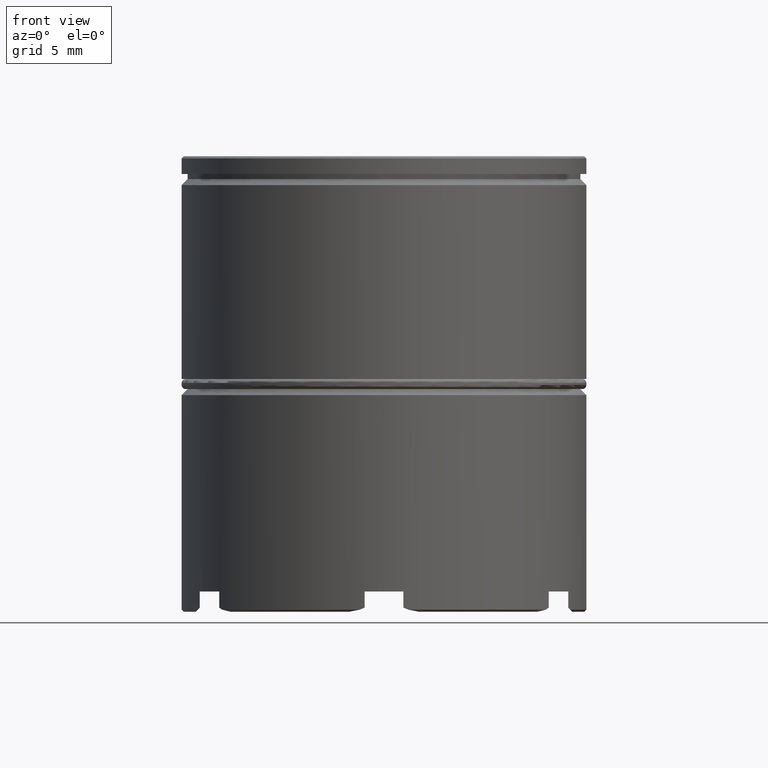
[diagram: clean part render]
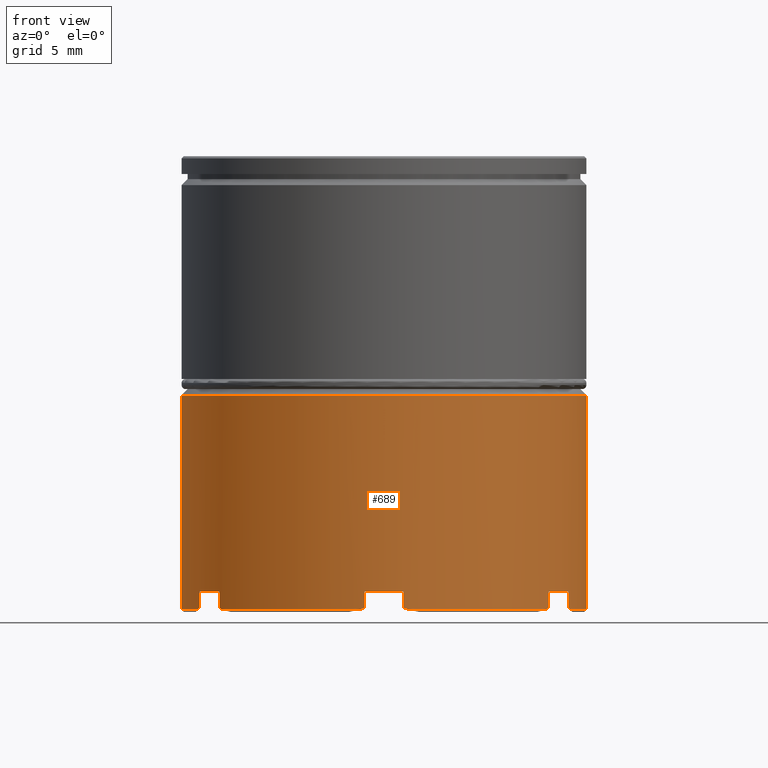
[diagram: same view with one face highlighted and labeled with its STEP entity id]
A machine part, front view. The second image highlights one B-rep face of the part: STEP entity #689.
In plain terms, the highlighted cylindrical surface (partial cylindrical patch) has radius 10 mm, axis along (-0, -0, 1).
Its self-contained STEP definition (entity closure, byte-faithful):
#34 = EDGE_CURVE ( 'NONE', #687, #1627, #835, .T. ) ;
#36 = DIRECTION ( 'NONE',  ( -0.000000000000000000, -0.000000000000000000, 1.000000000000000000 ) ) ;
#39 = CARTESIAN_POINT ( 'NONE',  ( 1.123833772376130691, -9.936992996320922700, -22.36760525823003221 ) ) ;
#47 = DIRECTION ( 'NONE',  ( 0.000000000000000000, 0.000000000000000000, -1.000000000000000000 ) ) ;
#56 = CARTESIAN_POINT ( 'NONE',  ( 1.041662824983015545, -9.945942424723392961, -22.33427021687936076 ) ) ;
#57 =( BOUNDED_CURVE ( )  B_SPLINE_CURVE ( 3, ( #327, #970, #1346, #223 ),
 .UNSPECIFIED., .F., .T. ) 
 B_SPLINE_CURVE_WITH_KNOTS ( ( 4, 4 ),
 ( 3.544308495170453099, 3.569104918534661497 ),
 .UNSPECIFIED. ) 
 CURVE ( )  GEOMETRIC_REPRESENTATION_ITEM ( )  RATIONAL_B_SPLINE_CURVE ( ( 1.000000000000000000, 0.9999487621053724240, 0.9999487621053724240, 1.000000000000000000 ) ) 
 REPRESENTATION_ITEM ( '' )  );
#74 = ORIENTED_EDGE ( 'NONE', *, *, #555, .T. ) ;
#75 = CARTESIAN_POINT ( 'NONE',  ( -0.9593872389242613652, -9.953872418601180883, -22.30000000000000071 ) ) ;
#89 = CARTESIAN_POINT ( 'NONE',  ( 9.100000000000001421, -4.146082488325571802, -21.50000000000000000 ) ) ;
#93 = CARTESIAN_POINT ( 'NONE',  ( -9.134270216879361470, -4.070864743748538572, -22.33427021687936431 ) ) ;
#112 = CARTESIAN_POINT ( 'NONE',  ( 9.100000000000001421, -4.146082488325571802, 0.000000000000000000 ) ) ;
#119 = VERTEX_POINT ( 'NONE', #1256 ) ;
#125 = ORIENTED_EDGE ( 'NONE', *, *, #958, .T. ) ;
#133 = EDGE_CURVE ( 'NONE', #773, #1183, #599, .T. ) ;
#138 = CARTESIAN_POINT ( 'NONE',  ( -8.092607391896340374, -5.875077680974857053, -22.33427021687935721 ) ) ;
#166 =( BOUNDED_CURVE ( )  B_SPLINE_CURVE ( 3, ( #796, #56, #39, #1379 ),
 .UNSPECIFIED., .F., .T. ) 
 B_SPLINE_CURVE_WITH_KNOTS ( ( 4, 4 ),
 ( 2.714080388644924735, 2.738876812009132244 ),
 .UNSPECIFIED. ) 
 CURVE ( )  GEOMETRIC_REPRESENTATION_ITEM ( )  RATIONAL_B_SPLINE_CURVE ( ( 1.000000000000000000, 0.9999487621053724240, 0.9999487621053724240, 1.000000000000000000 ) ) 
 REPRESENTATION_ITEM ( '' )  );
#167 = CARTESIAN_POINT ( 'NONE',  ( -8.140612761075741943, -5.807789930275611745, -21.50000000000000000 ) ) ;
#168 = ORIENTED_EDGE ( 'NONE', *, *, #701, .T. ) ;
#169 = DIRECTION ( 'NONE',  ( -0.000000000000000000, -0.000000000000000000, 1.000000000000000000 ) ) ;
#175 = LINE ( 'NONE', #683, #179 ) ;
#179 = VECTOR ( 'NONE', #1070, 1000.000000000000000 ) ;
#194 = ORIENTED_EDGE ( 'NONE', *, *, #769, .T. ) ;
#200 = DIRECTION ( 'NONE',  ( 0.000000000000000000, 0.000000000000000000, -1.000000000000000000 ) ) ;
#204 = VERTEX_POINT ( 'NONE', #1561 ) ;
#205 = CIRCLE ( 'NONE', #1132, 10.00000000000000000 ) ;
#206 = CARTESIAN_POINT ( 'NONE',  ( -9.100000000000003197, -4.146082488325570026, -22.30000000000000426 ) ) ;
#214 = CYLINDRICAL_SURFACE ( 'NONE', #648, 10.00000000000000000 ) ;
#220 = CARTESIAN_POINT ( 'NONE',  ( 9.100000000000001421, -4.146082488325571802, -22.30000000000000426 ) ) ;
#222 = ORIENTED_EDGE ( 'NONE', *, *, #1359, .T. ) ;
#223 = CARTESIAN_POINT ( 'NONE',  ( -0.9593872389242613652, -9.953872418601180883, -22.30000000000000071 ) ) ;
#230 = VERTEX_POINT ( 'NONE', #281 ) ;
#233 = LINE ( 'NONE', #112, #1136 ) ;
#276 = CARTESIAN_POINT ( 'NONE',  ( -8.043771485853893566, -5.941765094669095859, -22.36760525823002865 ) ) ;
#281 = CARTESIAN_POINT ( 'NONE',  ( -10.00000000000000000, 1.224646799147353256E-15, -22.39999999999999858 ) ) ;
#287 = AXIS2_PLACEMENT_3D ( 'NONE', #1413, #880, #890 ) ;
#308 = CARTESIAN_POINT ( 'NONE',  ( -1.205887450304584885, -9.927025509043376772, -22.39999999999999858 ) ) ;
#322 = VERTEX_POINT ( 'NONE', #1049 ) ;
#327 = CARTESIAN_POINT ( 'NONE',  ( -1.205887450304584885, -9.927025509043376772, -22.39999999999999858 ) ) ;
#330 = ORIENTED_EDGE ( 'NONE', *, *, #1147, .F. ) ;
#345 = DIRECTION ( 'NONE',  ( -1.000000000000000000, 0.000000000000000000, 0.000000000000000000 ) ) ;
#351 =( BOUNDED_CURVE ( )  B_SPLINE_CURVE ( 3, ( #539, #410, #1595, #1084 ),
 .UNSPECIFIED., .F., .T. ) 
 B_SPLINE_CURVE_WITH_KNOTS ( ( 4, 4 ),
 ( 2.714080388644924291, 2.738876812009131356 ),
 .UNSPECIFIED. ) 
 CURVE ( )  GEOMETRIC_REPRESENTATION_ITEM ( )  RATIONAL_B_SPLINE_CURVE ( ( 1.000000000000000000, 0.9999487621053724240, 0.9999487621053724240, 1.000000000000000000 ) ) 
 REPRESENTATION_ITEM ( '' )  );
#371 = EDGE_CURVE ( 'NONE', #844, #450, #57, .T. ) ;
#379 = DIRECTION ( 'NONE',  ( -0.000000000000000000, -0.000000000000000000, 1.000000000000000000 ) ) ;
#383 = CARTESIAN_POINT ( 'NONE',  ( 0.000000000000000000, 0.000000000000000000, -22.39999999999999858 ) ) ;
#397 = EDGE_CURVE ( 'NONE', #204, #322, #1602, .T. ) ;
#410 = CARTESIAN_POINT ( 'NONE',  ( 9.134270216879359694, -4.070864743748543901, -22.33427021687936431 ) ) ;
#411 = CIRCLE ( 'NONE', #867, 10.00000000000000000 ) ;
#423 = CARTESIAN_POINT ( 'NONE',  ( -7.994112549695421954, -6.007841920590299978, -22.39999999999999858 ) ) ;
#430 = LINE ( 'NONE', #1437, #775 ) ;
#439 = DIRECTION ( 'NONE',  ( -0.000000000000000000, -0.000000000000000000, 1.000000000000000000 ) ) ;
#441 = AXIS2_PLACEMENT_3D ( 'NONE', #899, #1411, #647 ) ;
#448 = ORIENTED_EDGE ( 'NONE', *, *, #1192, .F. ) ;
#450 = VERTEX_POINT ( 'NONE', #75 ) ;
#452 = CARTESIAN_POINT ( 'NONE',  ( 7.994112549695425507, -6.007841920590296425, -22.39999999999999858 ) ) ;
#465 = ORIENTED_EDGE ( 'NONE', *, *, #133, .T. ) ;
#466 = CARTESIAN_POINT ( 'NONE',  ( 0.000000000000000000, 0.000000000000000000, -22.39999999999999858 ) ) ;
#467 = CARTESIAN_POINT ( 'NONE',  ( -8.140612761075741943, -5.807789930275611745, -22.30000000000000071 ) ) ;
#473 = VERTEX_POINT ( 'NONE', #423 ) ;
#481 = CARTESIAN_POINT ( 'NONE',  ( -9.100000000000003197, -4.146082488325570026, -21.50000000000000000 ) ) ;
#490 = CARTESIAN_POINT ( 'NONE',  ( 0.000000000000000000, 0.000000000000000000, -21.50000000000000000 ) ) ;
#508 =( BOUNDED_CURVE ( )  B_SPLINE_CURVE ( 3, ( #749, #138, #276, #772 ),
 .UNSPECIFIED., .F., .T. ) 
 B_SPLINE_CURVE_WITH_KNOTS ( ( 4, 4 ),
 ( 2.714080388644925179, 2.738876812009133133 ),
 .UNSPECIFIED. ) 
 CURVE ( )  GEOMETRIC_REPRESENTATION_ITEM ( )  RATIONAL_B_SPLINE_CURVE ( ( 1.000000000000000000, 0.9999487621053724240, 0.9999487621053724240, 1.000000000000000000 ) ) 
 REPRESENTATION_ITEM ( '' )  );
#535 = EDGE_CURVE ( 'NONE', #1239, #322, #1134, .T. ) ;
#539 = CARTESIAN_POINT ( 'NONE',  ( 9.100000000000001421, -4.146082488325571802, -22.30000000000000426 ) ) ;
#545 = CARTESIAN_POINT ( 'NONE',  ( 10.00000000000000000, 0.000000000000000000, -22.39999999999999858 ) ) ;
#555 = EDGE_CURVE ( 'NONE', #1459, #1627, #1313, .T. ) ;
#562 = DIRECTION ( 'NONE',  ( -0.000000000000000000, -0.000000000000000000, 1.000000000000000000 ) ) ;
#564 = CARTESIAN_POINT ( 'NONE',  ( -9.199999999999999289, -3.919183588453087008, -22.39999999999999858 ) ) ;
#598 = CIRCLE ( 'NONE', #1557, 10.00000000000000000 ) ;
#599 = CIRCLE ( 'NONE', #287, 10.00000000000000000 ) ;
#601 = VERTEX_POINT ( 'NONE', #615 ) ;
#615 = CARTESIAN_POINT ( 'NONE',  ( -0.9593872389242613652, -9.953872418601180883, -21.50000000000000000 ) ) ;
#620 = ORIENTED_EDGE ( 'NONE', *, *, #932, .T. ) ;
#621 = EDGE_CURVE ( 'NONE', #230, #1183, #430, .T. ) ;
#622 = DIRECTION ( 'NONE',  ( -1.000000000000000000, 0.000000000000000000, 0.000000000000000000 ) ) ;
#631 = CARTESIAN_POINT ( 'NONE',  ( 0.000000000000000000, 0.000000000000000000, -21.50000000000000000 ) ) ;
#647 = DIRECTION ( 'NONE',  ( -1.000000000000000000, 0.000000000000000000, 0.000000000000000000 ) ) ;
#648 = AXIS2_PLACEMENT_3D ( 'NONE', #699, #821, #1332 ) ;
#668 = VERTEX_POINT ( 'NONE', #1243 ) ;
#683 = CARTESIAN_POINT ( 'NONE',  ( 0.9593872389242583676, -9.953872418601179106, 0.000000000000000000 ) ) ;
#684 = LINE ( 'NONE', #1173, #1010 ) ;
#687 = VERTEX_POINT ( 'NONE', #481 ) ;
#689 = ADVANCED_FACE ( 'NONE', ( #999 ), #214, .T. ) ;
#699 = CARTESIAN_POINT ( 'NONE',  ( 0.000000000000000000, 0.000000000000000000, 0.000000000000000000 ) ) ;
#701 = EDGE_CURVE ( 'NONE', #230, #1459, #1579, .T. ) ;
#717 = ORIENTED_EDGE ( 'NONE', *, *, #621, .F. ) ;
#721 = VERTEX_POINT ( 'NONE', #1338 ) ;
#722 = CARTESIAN_POINT ( 'NONE',  ( -10.00000000000000000, 1.224646799147353256E-15, -11.80000000000000071 ) ) ;
#723 = CARTESIAN_POINT ( 'NONE',  ( 8.140612761075740167, -5.807789930275612633, -22.30000000000000071 ) ) ;
#749 = CARTESIAN_POINT ( 'NONE',  ( -8.140612761075741943, -5.807789930275611745, -22.30000000000000071 ) ) ;
#751 = CIRCLE ( 'NONE', #1057, 10.00000000000000000 ) ;
#769 = EDGE_CURVE ( 'NONE', #473, #844, #205, .T. ) ;
#772 = CARTESIAN_POINT ( 'NONE',  ( -7.994112549695421954, -6.007841920590299978, -22.39999999999999858 ) ) ;
#773 = VERTEX_POINT ( 'NONE', #1396 ) ;
#775 = VECTOR ( 'NONE', #169, 1000.000000000000000 ) ;
#787 = CARTESIAN_POINT ( 'NONE',  ( 0.9593872389242583676, -9.953872418601179106, -22.30000000000000071 ) ) ;
#796 = CARTESIAN_POINT ( 'NONE',  ( 0.9593872389242583676, -9.953872418601179106, -22.30000000000000071 ) ) ;
#814 = EDGE_LOOP ( 'NONE', ( #717, #168, #74, #1340, #1119, #330, #620, #194, #1488, #856, #830, #1120, #1412, #222, #1367, #1133, #1601, #448, #125, #1463, #1472, #465 ) ) ;
#820 = DIRECTION ( 'NONE',  ( -0.000000000000000000, -0.000000000000000000, 1.000000000000000000 ) ) ;
#821 = DIRECTION ( 'NONE',  ( -0.000000000000000000, -0.000000000000000000, 1.000000000000000000 ) ) ;
#822 = DIRECTION ( 'NONE',  ( -1.000000000000000000, 3.552713678800500929E-15, 0.000000000000000000 ) ) ;
#830 = ORIENTED_EDGE ( 'NONE', *, *, #892, .T. ) ;
#835 = LINE ( 'NONE', #1251, #1322 ) ;
#844 = VERTEX_POINT ( 'NONE', #308 ) ;
#854 = DIRECTION ( 'NONE',  ( -0.000000000000000000, -0.000000000000000000, 1.000000000000000000 ) ) ;
#856 = ORIENTED_EDGE ( 'NONE', *, *, #994, .F. ) ;
#866 = AXIS2_PLACEMENT_3D ( 'NONE', #466, #1223, #345 ) ;
#867 = AXIS2_PLACEMENT_3D ( 'NONE', #1077, #439, #822 ) ;
#876 = DIRECTION ( 'NONE',  ( -1.000000000000000000, 0.000000000000000000, 0.000000000000000000 ) ) ;
#880 = DIRECTION ( 'NONE',  ( 0.000000000000000000, 0.000000000000000000, -1.000000000000000000 ) ) ;
#890 = DIRECTION ( 'NONE',  ( 1.000000000000000000, 0.000000000000000000, 0.000000000000000000 ) ) ;
#891 = DIRECTION ( 'NONE',  ( -1.000000000000000000, 0.000000000000000000, 0.000000000000000000 ) ) ;
#892 = EDGE_CURVE ( 'NONE', #601, #668, #751, .T. ) ;
#899 = CARTESIAN_POINT ( 'NONE',  ( 0.000000000000000000, 0.000000000000000000, -21.50000000000000000 ) ) ;
#917 = DIRECTION ( 'NONE',  ( -0.000000000000000000, -0.000000000000000000, 1.000000000000000000 ) ) ;
#925 = VERTEX_POINT ( 'NONE', #467 ) ;
#932 = EDGE_CURVE ( 'NONE', #925, #473, #508, .T. ) ;
#958 = EDGE_CURVE ( 'NONE', #1483, #721, #351, .T. ) ;
#969 = VERTEX_POINT ( 'NONE', #167 ) ;
#970 = CARTESIAN_POINT ( 'NONE',  ( -1.123833772376140905, -9.936992996320919147, -22.36760525823002865 ) ) ;
#979 = CARTESIAN_POINT ( 'NONE',  ( 8.140612761075740167, -5.807789930275612633, 0.000000000000000000 ) ) ;
#983 = DIRECTION ( 'NONE',  ( -1.000000000000000000, 0.000000000000000000, 0.000000000000000000 ) ) ;
#989 = LINE ( 'NONE', #1487, #1536 ) ;
#994 = EDGE_CURVE ( 'NONE', #601, #450, #1179, .T. ) ;
#995 = VERTEX_POINT ( 'NONE', #545 ) ;
#999 = FACE_OUTER_BOUND ( 'NONE', #814, .T. ) ;
#1001 = EDGE_CURVE ( 'NONE', #1196, #668, #175, .T. ) ;
#1007 = VECTOR ( 'NONE', #1476, 1000.000000000000000 ) ;
#1010 = VECTOR ( 'NONE', #562, 1000.000000000000000 ) ;
#1049 = CARTESIAN_POINT ( 'NONE',  ( 8.140612761075740167, -5.807789930275612633, -22.30000000000000071 ) ) ;
#1057 = AXIS2_PLACEMENT_3D ( 'NONE', #490, #1615, #876 ) ;
#1058 = AXIS2_PLACEMENT_3D ( 'NONE', #631, #36, #622 ) ;
#1070 = DIRECTION ( 'NONE',  ( -0.000000000000000000, -0.000000000000000000, 1.000000000000000000 ) ) ;
#1076 = EDGE_CURVE ( 'NONE', #721, #995, #411, .T. ) ;
#1077 = CARTESIAN_POINT ( 'NONE',  ( 0.000000000000000000, 0.000000000000000000, -22.39999999999999858 ) ) ;
#1084 = CARTESIAN_POINT ( 'NONE',  ( 9.199999999999997513, -3.919183588453090561, -22.39999999999999858 ) ) ;
#1119 = ORIENTED_EDGE ( 'NONE', *, *, #1543, .T. ) ;
#1120 = ORIENTED_EDGE ( 'NONE', *, *, #1001, .F. ) ;
#1132 = AXIS2_PLACEMENT_3D ( 'NONE', #1524, #379, #891 ) ;
#1133 = ORIENTED_EDGE ( 'NONE', *, *, #397, .F. ) ;
#1134 =( BOUNDED_CURVE ( )  B_SPLINE_CURVE ( 3, ( #452, #1225, #1486, #723 ),
 .UNSPECIFIED., .F., .T. ) 
 B_SPLINE_CURVE_WITH_KNOTS ( ( 4, 4 ),
 ( 3.544308495170454432, 3.569104918534661941 ),
 .UNSPECIFIED. ) 
 CURVE ( )  GEOMETRIC_REPRESENTATION_ITEM ( )  RATIONAL_B_SPLINE_CURVE ( ( 1.000000000000000000, 0.9999487621053724240, 0.9999487621053724240, 1.000000000000000000 ) ) 
 REPRESENTATION_ITEM ( '' )  );
#1136 = VECTOR ( 'NONE', #917, 1000.000000000000000 ) ;
#1147 = EDGE_CURVE ( 'NONE', #925, #969, #989, .T. ) ;
#1161 = CARTESIAN_POINT ( 'NONE',  ( 7.994112549695425507, -6.007841920590296425, -22.39999999999999858 ) ) ;
#1173 = CARTESIAN_POINT ( 'NONE',  ( 10.00000000000000000, 0.000000000000000000, 0.000000000000000000 ) ) ;
#1179 = LINE ( 'NONE', #1574, #1607 ) ;
#1183 = VERTEX_POINT ( 'NONE', #722 ) ;
#1192 = EDGE_CURVE ( 'NONE', #1483, #1392, #233, .T. ) ;
#1196 = VERTEX_POINT ( 'NONE', #787 ) ;
#1223 = DIRECTION ( 'NONE',  ( -0.000000000000000000, -0.000000000000000000, 1.000000000000000000 ) ) ;
#1225 = CARTESIAN_POINT ( 'NONE',  ( 8.043771485853898895, -5.941765094669091418, -22.36760525823003221 ) ) ;
#1239 = VERTEX_POINT ( 'NONE', #1161 ) ;
#1243 = CARTESIAN_POINT ( 'NONE',  ( 0.9593872389242552590, -9.953872418601180883, -21.50000000000000000 ) ) ;
#1248 = CARTESIAN_POINT ( 'NONE',  ( -9.167605258230031140, -3.995227901651832614, -22.36760525823003221 ) ) ;
#1251 = CARTESIAN_POINT ( 'NONE',  ( -9.100000000000003197, -4.146082488325570026, 0.000000000000000000 ) ) ;
#1256 = CARTESIAN_POINT ( 'NONE',  ( 1.205887450304572450, -9.927025509043378548, -22.39999999999999858 ) ) ;
#1279 = CARTESIAN_POINT ( 'NONE',  ( -9.100000000000003197, -4.146082488325570026, -22.30000000000000426 ) ) ;
#1313 =( BOUNDED_CURVE ( )  B_SPLINE_CURVE ( 3, ( #1496, #1248, #93, #206 ),
 .UNSPECIFIED., .F., .T. ) 
 B_SPLINE_CURVE_WITH_KNOTS ( ( 4, 4 ),
 ( 3.544308495170454432, 3.569104918534661497 ),
 .UNSPECIFIED. ) 
 CURVE ( )  GEOMETRIC_REPRESENTATION_ITEM ( )  RATIONAL_B_SPLINE_CURVE ( ( 1.000000000000000000, 0.9999487621053724240, 0.9999487621053724240, 1.000000000000000000 ) ) 
 REPRESENTATION_ITEM ( '' )  );
#1322 = VECTOR ( 'NONE', #200, 1000.000000000000000 ) ;
#1329 = EDGE_CURVE ( 'NONE', #995, #773, #684, .T. ) ;
#1332 = DIRECTION ( 'NONE',  ( 1.000000000000000000, 0.000000000000000000, 0.000000000000000000 ) ) ;
#1338 = CARTESIAN_POINT ( 'NONE',  ( 9.199999999999997513, -3.919183588453090561, -22.39999999999999858 ) ) ;
#1340 = ORIENTED_EDGE ( 'NONE', *, *, #34, .F. ) ;
#1346 = CARTESIAN_POINT ( 'NONE',  ( -1.041662824983022650, -9.945942424723391184, -22.33427021687935721 ) ) ;
#1359 = EDGE_CURVE ( 'NONE', #119, #1239, #598, .T. ) ;
#1367 = ORIENTED_EDGE ( 'NONE', *, *, #535, .T. ) ;
#1372 = CIRCLE ( 'NONE', #1058, 10.00000000000000000 ) ;
#1379 = CARTESIAN_POINT ( 'NONE',  ( 1.205887450304572450, -9.927025509043378548, -22.39999999999999858 ) ) ;
#1392 = VERTEX_POINT ( 'NONE', #89 ) ;
#1396 = CARTESIAN_POINT ( 'NONE',  ( 10.00000000000000000, 0.000000000000000000, -11.80000000000000071 ) ) ;
#1411 = DIRECTION ( 'NONE',  ( -0.000000000000000000, -0.000000000000000000, 1.000000000000000000 ) ) ;
#1412 = ORIENTED_EDGE ( 'NONE', *, *, #1480, .T. ) ;
#1413 = CARTESIAN_POINT ( 'NONE',  ( 0.000000000000000000, 0.000000000000000000, -11.80000000000000071 ) ) ;
#1435 = EDGE_CURVE ( 'NONE', #204, #1392, #1372, .T. ) ;
#1437 = CARTESIAN_POINT ( 'NONE',  ( -10.00000000000000000, 1.224646799147353256E-15, 0.000000000000000000 ) ) ;
#1459 = VERTEX_POINT ( 'NONE', #564 ) ;
#1463 = ORIENTED_EDGE ( 'NONE', *, *, #1076, .T. ) ;
#1472 = ORIENTED_EDGE ( 'NONE', *, *, #1329, .T. ) ;
#1476 = DIRECTION ( 'NONE',  ( 0.000000000000000000, 0.000000000000000000, -1.000000000000000000 ) ) ;
#1480 = EDGE_CURVE ( 'NONE', #1196, #119, #166, .T. ) ;
#1483 = VERTEX_POINT ( 'NONE', #220 ) ;
#1486 = CARTESIAN_POINT ( 'NONE',  ( 8.092607391896345703, -5.875077680974853500, -22.33427021687936076 ) ) ;
#1487 = CARTESIAN_POINT ( 'NONE',  ( -8.140612761075741943, -5.807789930275611745, 0.000000000000000000 ) ) ;
#1488 = ORIENTED_EDGE ( 'NONE', *, *, #371, .T. ) ;
#1496 = CARTESIAN_POINT ( 'NONE',  ( -9.199999999999999289, -3.919183588453087008, -22.39999999999999858 ) ) ;
#1524 = CARTESIAN_POINT ( 'NONE',  ( 0.000000000000000000, 0.000000000000000000, -22.39999999999999858 ) ) ;
#1536 = VECTOR ( 'NONE', #854, 1000.000000000000000 ) ;
#1543 = EDGE_CURVE ( 'NONE', #687, #969, #1610, .T. ) ;
#1557 = AXIS2_PLACEMENT_3D ( 'NONE', #383, #820, #983 ) ;
#1561 = CARTESIAN_POINT ( 'NONE',  ( 8.140612761075741943, -5.807789930275610857, -21.50000000000000000 ) ) ;
#1574 = CARTESIAN_POINT ( 'NONE',  ( -0.9593872389242613652, -9.953872418601180883, 0.000000000000000000 ) ) ;
#1579 = CIRCLE ( 'NONE', #866, 10.00000000000000000 ) ;
#1595 = CARTESIAN_POINT ( 'NONE',  ( 9.167605258230029364, -3.995227901651837943, -22.36760525823003576 ) ) ;
#1601 = ORIENTED_EDGE ( 'NONE', *, *, #1435, .T. ) ;
#1602 = LINE ( 'NONE', #979, #1007 ) ;
#1607 = VECTOR ( 'NONE', #47, 1000.000000000000000 ) ;
#1610 = CIRCLE ( 'NONE', #441, 10.00000000000000000 ) ;
#1615 = DIRECTION ( 'NONE',  ( -0.000000000000000000, -0.000000000000000000, 1.000000000000000000 ) ) ;
#1627 = VERTEX_POINT ( 'NONE', #1279 ) ;